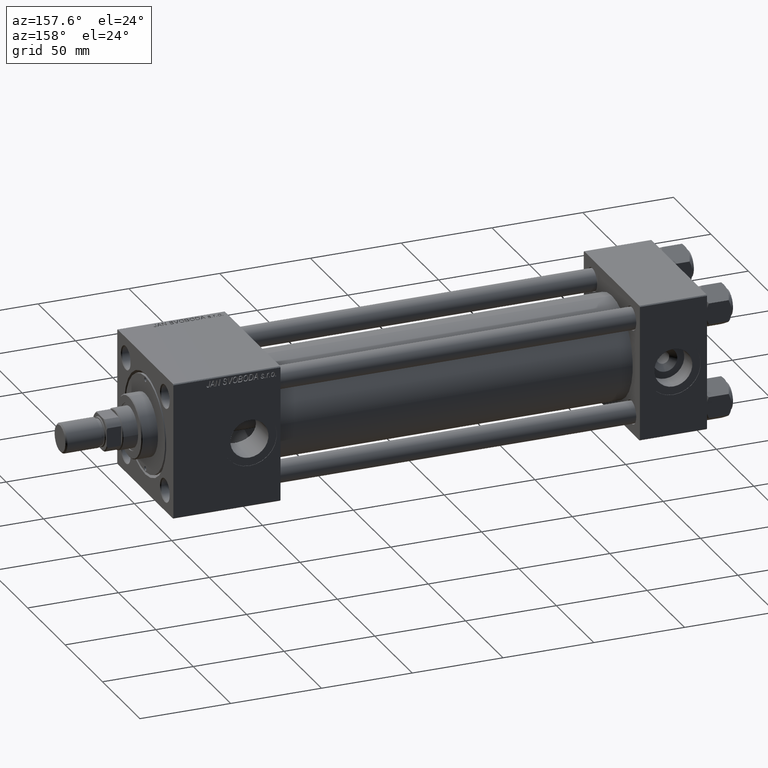
[diagram: clean part render]
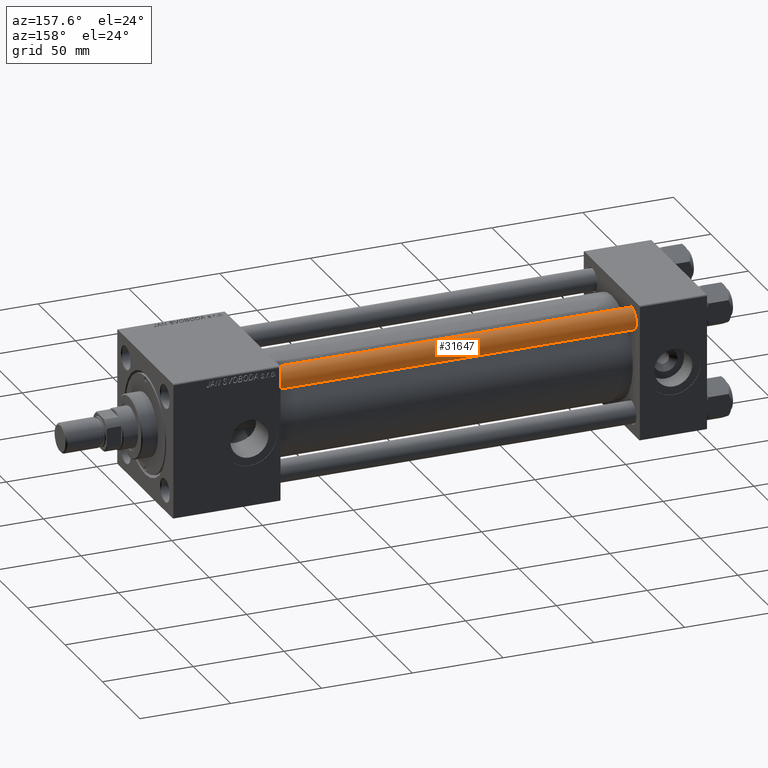
[diagram: same view with one face highlighted and labeled with its STEP entity id]
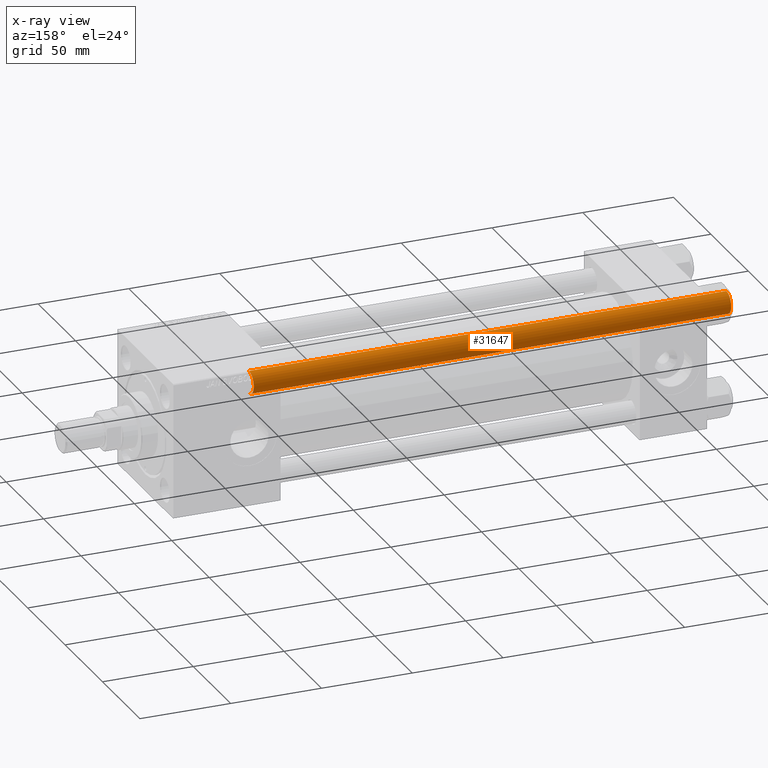
[diagram: x-ray of the same camera — body ghosted, the highlighted face saturated]
A machine part, auxiliary view. The second image highlights one B-rep face of the part: STEP entity #31647.
The next image is the same camera in x-ray: the body ghosted, the highlighted face saturated — about 0% of this face is hidden behind the body in this view.
In plain terms, the highlighted cylindrical surface (edge-blend (fillet) strip) has radius 6 mm, axis along (-1, 0, 0).
Its self-contained STEP definition (entity closure, byte-faithful):
#565 = ORIENTED_EDGE ( 'NONE', *, *, #2473, .F. ) ;
#2231 = CARTESIAN_POINT ( 'NONE',  ( 0.000000000000000000, 0.000000000000000000, 264.0000000000000000 ) ) ;
#2473 = EDGE_CURVE ( 'NONE', #41569, #10279, #25679, .T. ) ;
#2997 = ORIENTED_EDGE ( 'NONE', *, *, #44134, .T. ) ;
#3909 = DIRECTION ( 'NONE',  ( 1.000000000000000000, 0.000000000000000000, 0.000000000000000000 ) ) ;
#3923 = CARTESIAN_POINT ( 'NONE',  ( -6.000000000000000888, 0.000000000000000000, 263.5000000000000568 ) ) ;
#4002 = DIRECTION ( 'NONE',  ( -1.000000000000000000, 0.000000000000000000, 0.000000000000000000 ) ) ;
#6759 = DIRECTION ( 'NONE',  ( 0.000000000000000000, 0.000000000000000000, -1.000000000000000000 ) ) ;
#6802 = CIRCLE ( 'NONE', #25676, 6.000000000000000888 ) ;
#10279 = VERTEX_POINT ( 'NONE', #23017 ) ;
#12063 = EDGE_CURVE ( 'NONE', #22537, #10279, #6802, .T. ) ;
#12400 = AXIS2_PLACEMENT_3D ( 'NONE', #2231, #46656, #4002 ) ;
#14537 = CARTESIAN_POINT ( 'NONE',  ( 0.000000000000000000, 0.000000000000000000, 0.5000000000000559552 ) ) ;
#17677 = DIRECTION ( 'NONE',  ( -0.000000000000000000, -0.000000000000000000, -1.000000000000000000 ) ) ;
#18292 = VERTEX_POINT ( 'NONE', #33947 ) ;
#21779 = FACE_OUTER_BOUND ( 'NONE', #39438, .T. ) ;
#22537 = VERTEX_POINT ( 'NONE', #33671 ) ;
#23017 = CARTESIAN_POINT ( 'NONE',  ( -6.000000000000000888, 0.000000000000000000, 0.5000000000000559552 ) ) ;
#25676 = AXIS2_PLACEMENT_3D ( 'NONE', #14537, #38416, #38670 ) ;
#25679 = LINE ( 'NONE', #33125, #41206 ) ;
#28615 = AXIS2_PLACEMENT_3D ( 'NONE', #31155, #6759, #3909 ) ;
#29498 = CARTESIAN_POINT ( 'NONE',  ( 6.000000000000000888, 7.347880794884120722E-16, 264.0000000000000000 ) ) ;
#31155 = CARTESIAN_POINT ( 'NONE',  ( 0.000000000000000000, 0.000000000000000000, 263.5000000000000568 ) ) ;
#31647 = ADVANCED_FACE ( 'NONE', ( #21779 ), #37438, .T. ) ;
#33125 = CARTESIAN_POINT ( 'NONE',  ( -6.000000000000000888, 0.000000000000000000, 264.0000000000000000 ) ) ;
#33378 = DIRECTION ( 'NONE',  ( -0.000000000000000000, -0.000000000000000000, -1.000000000000000000 ) ) ;
#33671 = CARTESIAN_POINT ( 'NONE',  ( 6.000000000000000888, 7.347880794884120722E-16, 0.5000000000000559552 ) ) ;
#33947 = CARTESIAN_POINT ( 'NONE',  ( 6.000000000000000888, 7.347880794884120722E-16, 263.5000000000000568 ) ) ;
#37438 = CYLINDRICAL_SURFACE ( 'NONE', #12400, 6.000000000000000888 ) ;
#38416 = DIRECTION ( 'NONE',  ( -0.000000000000000000, -0.000000000000000000, 1.000000000000000000 ) ) ;
#38466 = CIRCLE ( 'NONE', #28615, 6.000000000000000888 ) ;
#38670 = DIRECTION ( 'NONE',  ( 1.000000000000000000, 0.000000000000000000, 0.000000000000000000 ) ) ;
#39341 = ORIENTED_EDGE ( 'NONE', *, *, #47888, .T. ) ;
#39438 = EDGE_LOOP ( 'NONE', ( #39341, #2997, #40919, #565 ) ) ;
#40826 = VECTOR ( 'NONE', #17677, 1000.000000000000000 ) ;
#40919 = ORIENTED_EDGE ( 'NONE', *, *, #12063, .T. ) ;
#41063 = LINE ( 'NONE', #29498, #40826 ) ;
#41206 = VECTOR ( 'NONE', #33378, 1000.000000000000000 ) ;
#41569 = VERTEX_POINT ( 'NONE', #3923 ) ;
#44134 = EDGE_CURVE ( 'NONE', #18292, #22537, #41063, .T. ) ;
#46656 = DIRECTION ( 'NONE',  ( -0.000000000000000000, -0.000000000000000000, -1.000000000000000000 ) ) ;
#47888 = EDGE_CURVE ( 'NONE', #41569, #18292, #38466, .T. ) ;